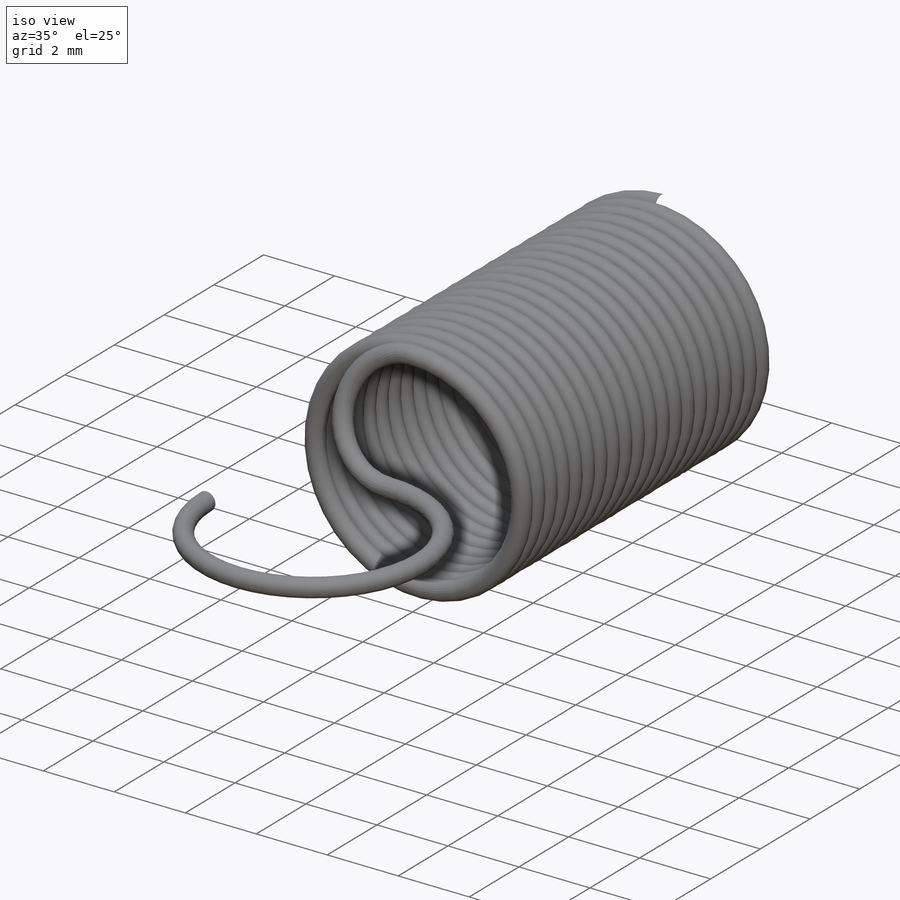
[diagram: iso view]
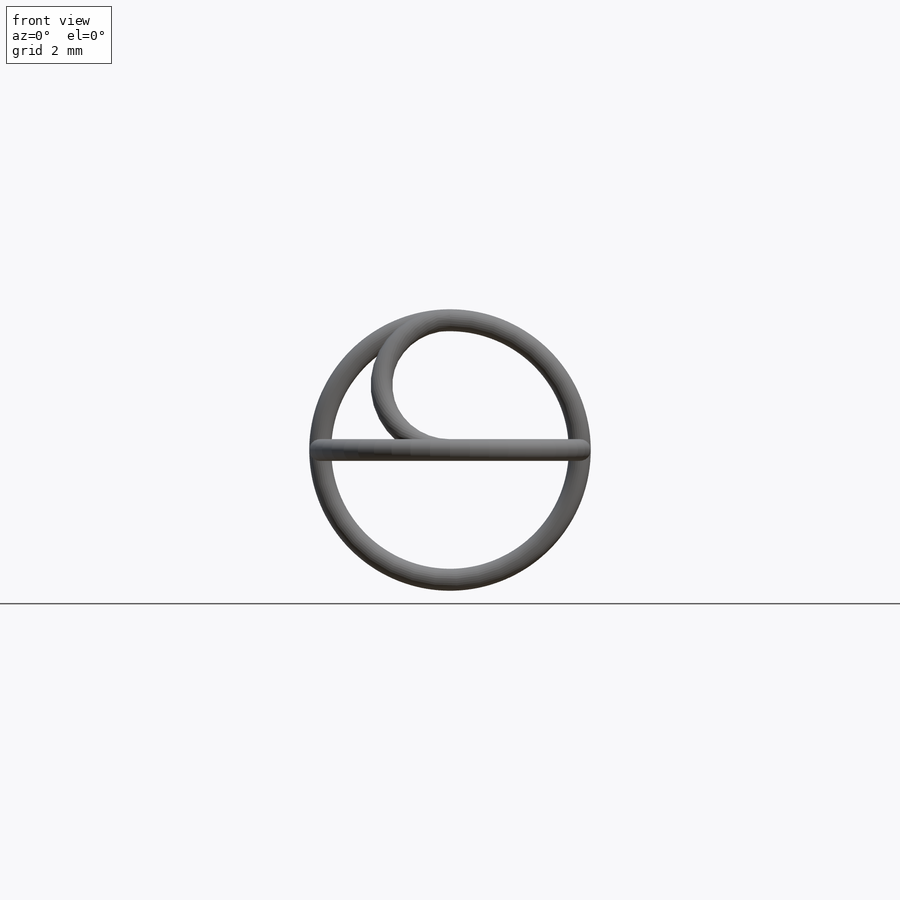
[diagram: front view]
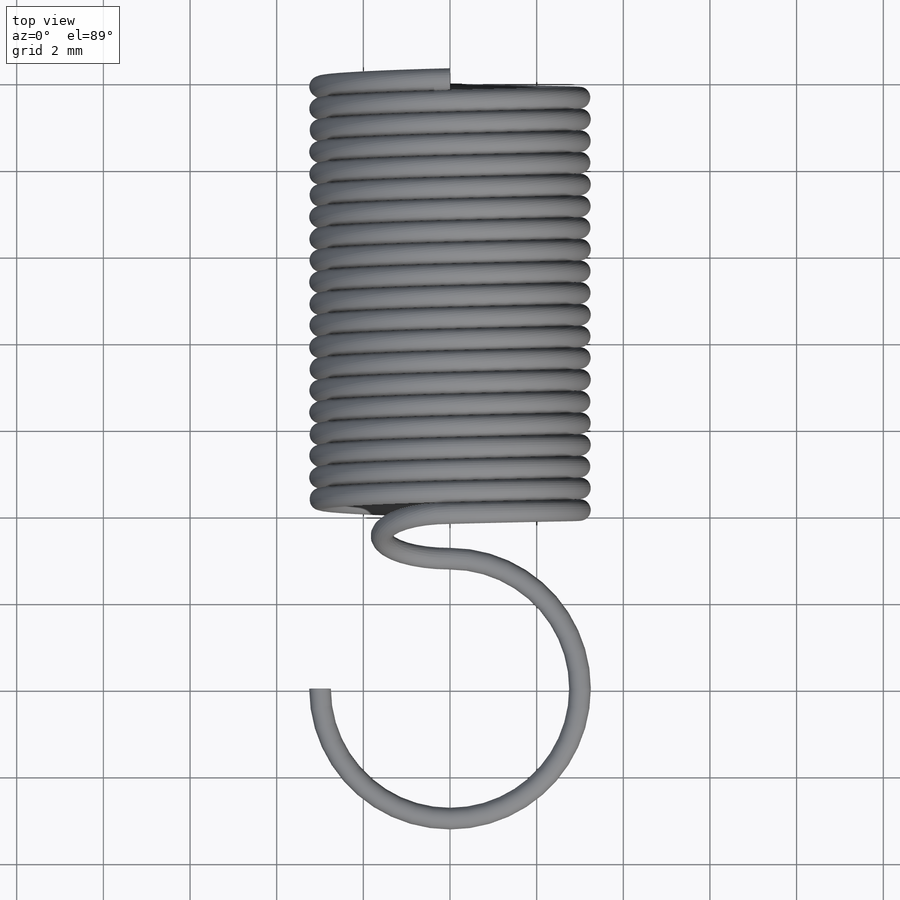
[diagram: top view]
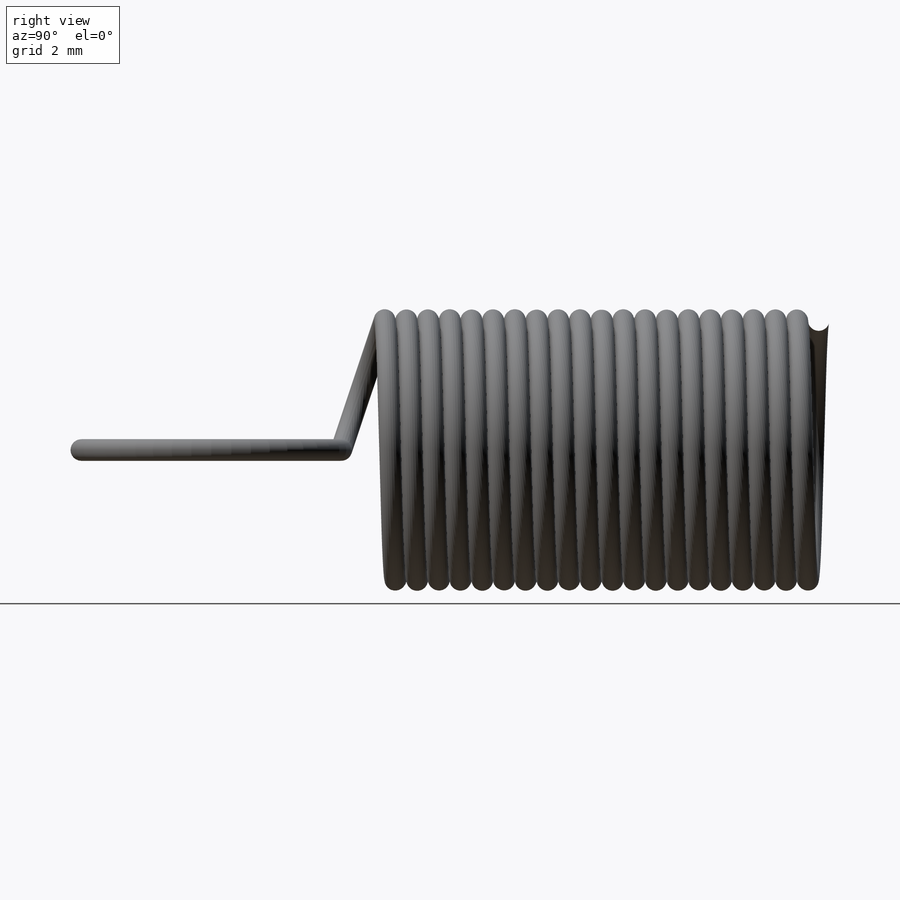
[diagram: right view]
SOLIDWORKS PART (.sldprt)
format: sldprt  version: not decoded by parser v0  size: 1,072,128 bytes
history: native  units: mm
features: sketch x13, sweep x5, plane x2, material x1 (+11 scaffold rows collapsed)
feature tree (32):
  scaffold x11  (default folders/planes/origin — collapsed)
  material  "Material <not specified>"
  sketch  "Sketch3"  dims[D2=0.25mm D1=3.0mm D3=~71.443099mm]
  sketch  "Sketch4"  dims[D2=0.5mm D1=3.0mm]
  sweep  "Sweep1"
  sketch  "Sketch19"  dims[D1=3.0mm]
  sketch  "Sketch8"
  sketch  "Sketch10"
  sketch  "Sketch6"  dims[D1=3.0mm D2=1.0mm]
  sketch  "Sketch7"  dims[D2=3.0mm D1=1.0mm]
  plane  "Plane1"
  plane  "Plane2"
  sketch  "Sketch11"  dims[D1=0.5mm]
  sweep  "Sweep2"
  sketch  "Sketch12"  dims[D1=0.5mm]
  sweep  "Sweep3"
  sketch  "Sketch13"  dims[D1=~1.96356mm]
  sketch  "Sketch14"
  sweep  "Sweep4"
  sketch  "Sketch15"
  sketch  "Sketch18"
  sweep  "Sweep5"
decode coverage: 8 of 18 modeling features carry decoded parameters
note: ~ marks probable driven/reference dimensions
summary: profile_refs inferred from adjacent sketches, not decoded
note: suppression state not decoded; provenance and decode notes live in map.json
